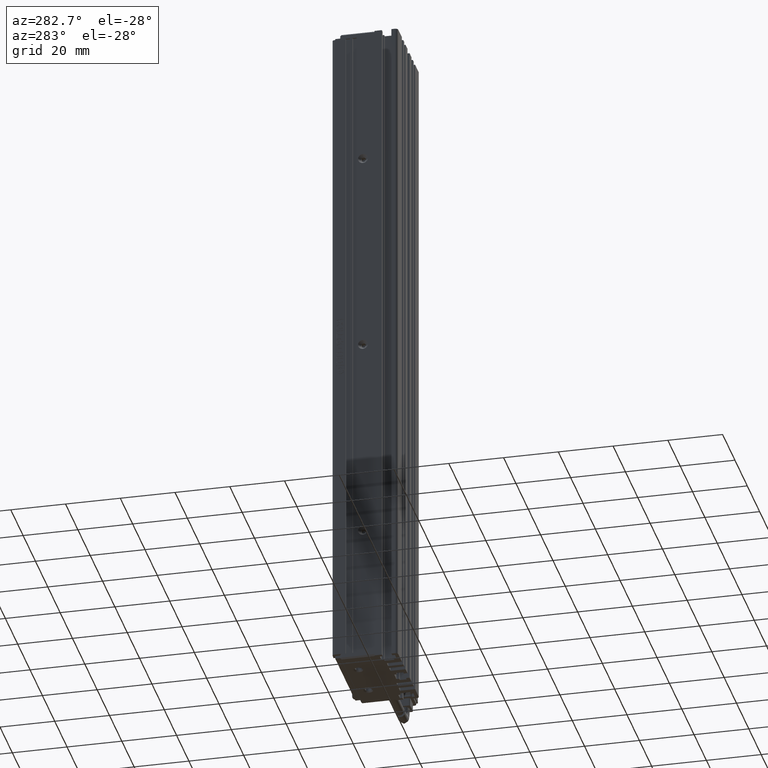
[diagram: clean part render]
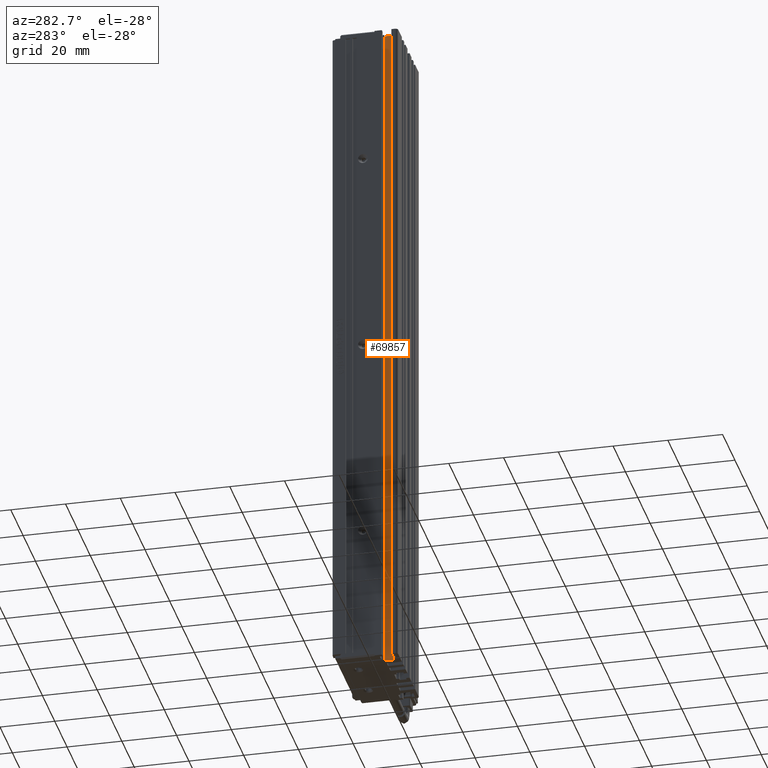
[diagram: same view with one face highlighted and labeled with its STEP entity id]
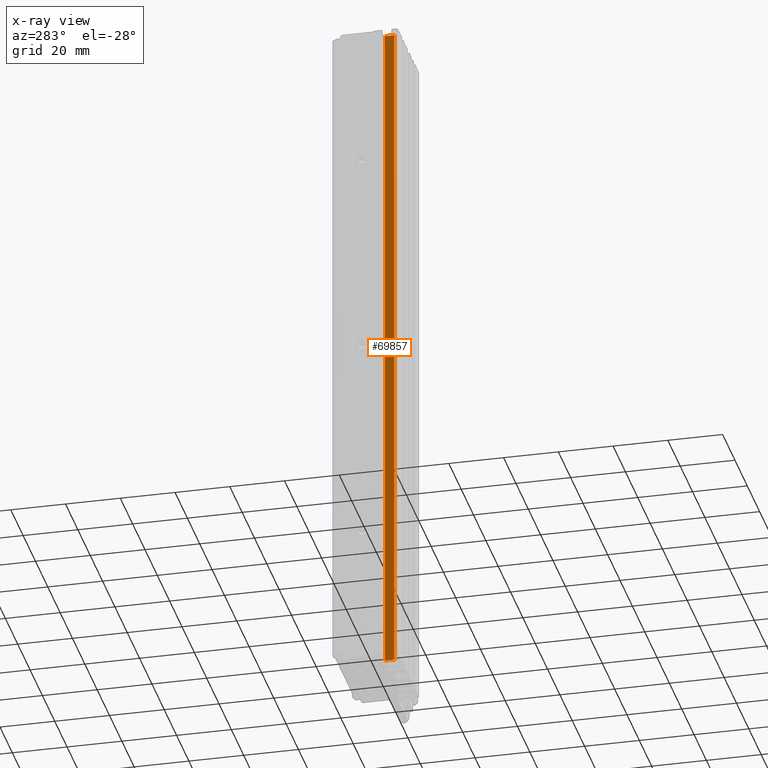
[diagram: x-ray of the same camera — body ghosted, the highlighted face saturated]
A machine part, auxiliary view. The second image highlights one B-rep face of the part: STEP entity #69857.
The next image is the same camera in x-ray: the body ghosted, the highlighted face saturated — about 0% of this face is hidden behind the body in this view.
In plain terms, the highlighted planar face has unit normal (1, 0, 0).
Its self-contained STEP definition (entity closure, byte-faithful):
#2492 = VECTOR ( 'NONE', #19560, 1000.000000000000000 ) ;
#8658 = VERTEX_POINT ( 'NONE', #17504 ) ;
#10091 = VECTOR ( 'NONE', #31924, 1000.000000000000000 ) ;
#10180 = VECTOR ( 'NONE', #95966, 1000.000000000000000 ) ;
#13481 = ORIENTED_EDGE ( 'NONE', *, *, #51823, .T. ) ;
#14389 = VERTEX_POINT ( 'NONE', #66329 ) ;
#15829 = AXIS2_PLACEMENT_3D ( 'NONE', #76430, #31685, #84263 ) ;
#17504 = CARTESIAN_POINT ( 'NONE',  ( 28.22537974683543600, 16.79073232304837400, -241.0000000000000000 ) ) ;
#19560 = DIRECTION ( 'NONE',  ( -0.0000000000000000000, 0.0000000000000000000, -1.000000000000000000 ) ) ;
#20903 = ORIENTED_EDGE ( 'NONE', *, *, #51432, .F. ) ;
#21095 = ORIENTED_EDGE ( 'NONE', *, *, #95789, .F. ) ;
#21721 = LINE ( 'NONE', #47328, #10091 ) ;
#28616 = VERTEX_POINT ( 'NONE', #47230 ) ;
#31685 = DIRECTION ( 'NONE',  ( 1.000000000000000000, 7.380418287155808400E-032, 0.0000000000000000000 ) ) ;
#31924 = DIRECTION ( 'NONE',  ( -0.0000000000000000000, -1.000000000000000000, -0.0000000000000000000 ) ) ;
#45061 = VECTOR ( 'NONE', #74376, 1000.000000000000000 ) ;
#47230 = CARTESIAN_POINT ( 'NONE',  ( 28.22537974683543600, 16.79073232304837400, 10.99999999999999600 ) ) ;
#47328 = CARTESIAN_POINT ( 'NONE',  ( 28.22537974683543600, 7.083797468354437600, -241.0000000000000000 ) ) ;
#51432 = EDGE_CURVE ( 'NONE', #8658, #28616, #68620, .T. ) ;
#51823 = EDGE_CURVE ( 'NONE', #8658, #56523, #21721, .T. ) ;
#56523 = VERTEX_POINT ( 'NONE', #57091 ) ;
#57091 = CARTESIAN_POINT ( 'NONE',  ( 28.22537974683543600, 13.29073232304836900, -241.0000000000000000 ) ) ;
#59163 = CARTESIAN_POINT ( 'NONE',  ( 28.22537974683543600, 16.79073232304837400, 10.99999999999999600 ) ) ;
#63073 = CARTESIAN_POINT ( 'NONE',  ( 28.22537974683543600, 13.29073232304836900, 10.99999999999999600 ) ) ;
#66329 = CARTESIAN_POINT ( 'NONE',  ( 28.22537974683543600, 13.29073232304836900, 10.99999999999999600 ) ) ;
#67878 = EDGE_CURVE ( 'NONE', #14389, #56523, #77199, .T. ) ;
#68620 = LINE ( 'NONE', #59163, #10180 ) ;
#69857 = ADVANCED_FACE ( 'NONE', ( #76993 ), #82965, .F. ) ;
#74376 = DIRECTION ( 'NONE',  ( -0.0000000000000000000, -1.000000000000000000, -0.0000000000000000000 ) ) ;
#75433 = LINE ( 'NONE', #90005, #45061 ) ;
#76430 = CARTESIAN_POINT ( 'NONE',  ( 28.22537974683543600, 7.083797468354437600, 10.99999999999999600 ) ) ;
#76993 = FACE_OUTER_BOUND ( 'NONE', #88217, .T. ) ;
#77199 = LINE ( 'NONE', #63073, #2492 ) ;
#82965 = PLANE ( 'NONE',  #15829 ) ;
#84263 = DIRECTION ( 'NONE',  ( -7.380418287155808400E-032, 1.000000000000000000, 0.0000000000000000000 ) ) ;
#84604 = ORIENTED_EDGE ( 'NONE', *, *, #67878, .F. ) ;
#88217 = EDGE_LOOP ( 'NONE', ( #84604, #21095, #20903, #13481 ) ) ;
#90005 = CARTESIAN_POINT ( 'NONE',  ( 28.22537974683543600, 7.083797468354435800, 10.99999999999999600 ) ) ;
#95789 = EDGE_CURVE ( 'NONE', #28616, #14389, #75433, .T. ) ;
#95966 = DIRECTION ( 'NONE',  ( 0.0000000000000000000, -0.0000000000000000000, 1.000000000000000000 ) ) ;